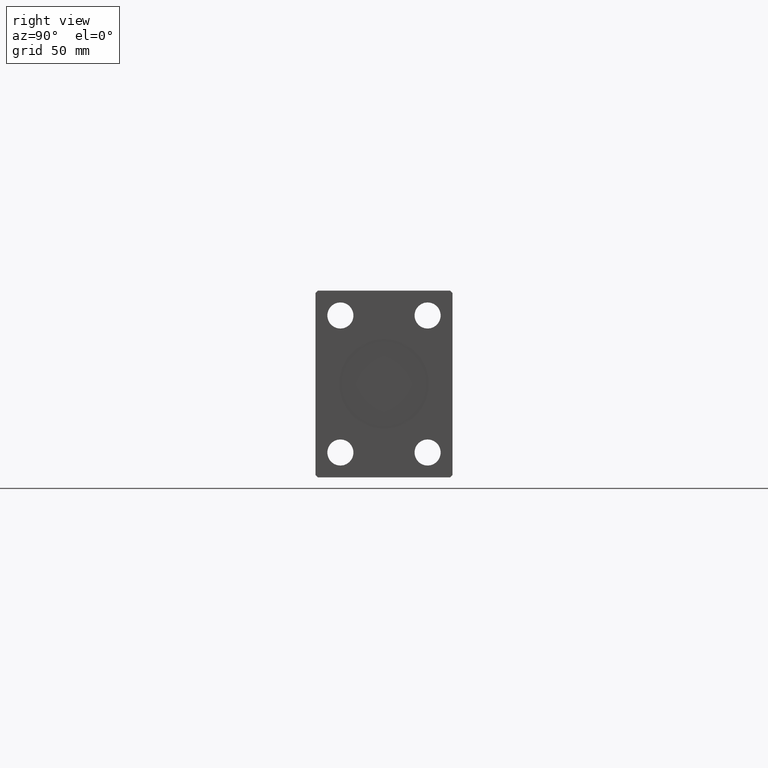
[diagram: clean part render]
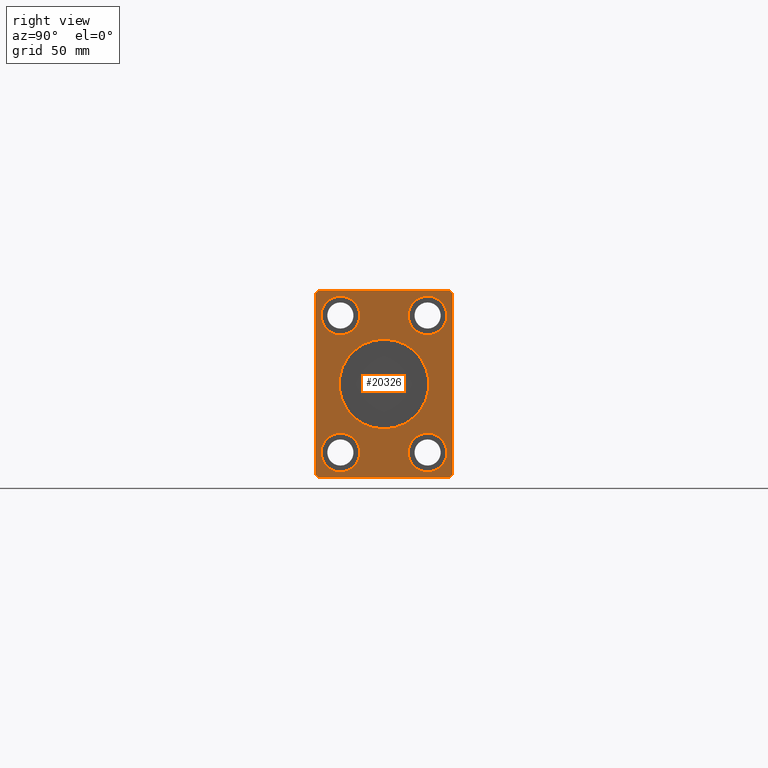
[diagram: same view with one face highlighted and labeled with its STEP entity id]
A machine part, right view. The second image highlights one B-rep face of the part: STEP entity #20326.
In plain terms, the highlighted planar face has unit normal (1, 0, 0).
Its self-contained STEP definition (entity closure, byte-faithful):
#592 = ORIENTED_EDGE ( 'NONE', *, *, #25924, .T. ) ;
#640 = FACE_BOUND ( 'NONE', #27757, .T. ) ;
#800 = VERTEX_POINT ( 'NONE', #42394 ) ;
#860 = FACE_OUTER_BOUND ( 'NONE', #3166, .T. ) ;
#1175 = DIRECTION ( 'NONE',  ( 0.000000000000000000, 0.000000000000000000, -1.000000000000000000 ) ) ;
#1200 = AXIS2_PLACEMENT_3D ( 'NONE', #37167, #6574, #3458 ) ;
#1367 = LINE ( 'NONE', #14974, #29896 ) ;
#1525 = DIRECTION ( 'NONE',  ( 1.000000000000000000, -0.000000000000000000, -0.000000000000000000 ) ) ;
#1619 = DIRECTION ( 'NONE',  ( 0.000000000000000000, 0.000000000000000000, -1.000000000000000000 ) ) ;
#1978 = DIRECTION ( 'NONE',  ( 0.000000000000000000, 0.000000000000000000, 1.000000000000000000 ) ) ;
#2007 = ORIENTED_EDGE ( 'NONE', *, *, #36453, .T. ) ;
#2431 = ORIENTED_EDGE ( 'NONE', *, *, #25258, .F. ) ;
#2437 = CARTESIAN_POINT ( 'NONE',  ( 265.0000000000000000, 27.50000000000000711, -36.49999999999999289 ) ) ;
#2486 = LINE ( 'NONE', #43546, #42595 ) ;
#2649 = CIRCLE ( 'NONE', #32602, 18.00000000000000000 ) ;
#2827 = EDGE_CURVE ( 'NONE', #32258, #18135, #26052, .T. ) ;
#3143 = VERTEX_POINT ( 'NONE', #18873 ) ;
#3166 = EDGE_LOOP ( 'NONE', ( #3241, #23382, #592, #19305, #11839, #15828, #2007, #16301 ) ) ;
#3241 = ORIENTED_EDGE ( 'NONE', *, *, #21726, .T. ) ;
#3426 = CARTESIAN_POINT ( 'NONE',  ( 265.0000000000000000, 26.50000000000000355, 37.50000000000000711 ) ) ;
#3458 = DIRECTION ( 'NONE',  ( 0.000000000000000000, 0.000000000000000000, 1.000000000000000000 ) ) ;
#3553 = VECTOR ( 'NONE', #14831, 1000.000000000000000 ) ;
#4074 = CARTESIAN_POINT ( 'NONE',  ( 265.0000000000000000, 17.50000000000000000, 19.74999999999999645 ) ) ;
#4819 = CARTESIAN_POINT ( 'NONE',  ( 265.0000000000000000, 27.50000000000000355, 36.50000000000000711 ) ) ;
#5244 = VECTOR ( 'NONE', #29415, 1000.000000000000114 ) ;
#5861 = DIRECTION ( 'NONE',  ( 0.000000000000000000, 0.000000000000000000, 1.000000000000000000 ) ) ;
#6115 = AXIS2_PLACEMENT_3D ( 'NONE', #36642, #33292, #36874 ) ;
#6532 = CIRCLE ( 'NONE', #40752, 7.750000000000003553 ) ;
#6574 = DIRECTION ( 'NONE',  ( -1.000000000000000000, -0.000000000000000000, -0.000000000000000000 ) ) ;
#6638 = DIRECTION ( 'NONE',  ( 0.000000000000000000, 0.000000000000000000, -1.000000000000000000 ) ) ;
#6781 = VERTEX_POINT ( 'NONE', #40216 ) ;
#7027 = ORIENTED_EDGE ( 'NONE', *, *, #18197, .T. ) ;
#7059 = ORIENTED_EDGE ( 'NONE', *, *, #20434, .F. ) ;
#7631 = CARTESIAN_POINT ( 'NONE',  ( 265.0000000000000000, -27.50000000000000711, 36.50000000000000711 ) ) ;
#7757 = CARTESIAN_POINT ( 'NONE',  ( 265.0000000000000000, 17.50000000000000000, -19.74999999999999645 ) ) ;
#7834 = VERTEX_POINT ( 'NONE', #43981 ) ;
#7857 = DIRECTION ( 'NONE',  ( 1.000000000000000000, 0.000000000000000000, 0.000000000000000000 ) ) ;
#7910 = CARTESIAN_POINT ( 'NONE',  ( 265.0000000000000000, 27.50000000000000711, -36.49999999999999289 ) ) ;
#7970 = DIRECTION ( 'NONE',  ( 1.000000000000000000, 0.000000000000000000, 0.000000000000000000 ) ) ;
#8220 = CARTESIAN_POINT ( 'NONE',  ( 265.0000000000000000, 17.50000000000000000, -27.50000000000000000 ) ) ;
#8470 = CIRCLE ( 'NONE', #40574, 7.750000000000003553 ) ;
#8599 = VERTEX_POINT ( 'NONE', #10334 ) ;
#8852 = EDGE_LOOP ( 'NONE', ( #15837, #23256 ) ) ;
#9410 = CIRCLE ( 'NONE', #13739, 7.750000000000003553 ) ;
#9540 = CIRCLE ( 'NONE', #26665, 18.00000000000000000 ) ;
#10148 = EDGE_CURVE ( 'NONE', #14929, #3143, #21159, .T. ) ;
#10160 = AXIS2_PLACEMENT_3D ( 'NONE', #40108, #27186, #6638 ) ;
#10334 = CARTESIAN_POINT ( 'NONE',  ( 265.0000000000000000, 0.000000000000000000, -18.00000000000000000 ) ) ;
#10349 = VERTEX_POINT ( 'NONE', #31629 ) ;
#10395 = CIRCLE ( 'NONE', #6115, 7.750000000000003553 ) ;
#10583 = VECTOR ( 'NONE', #29761, 1000.000000000000000 ) ;
#10665 = FACE_BOUND ( 'NONE', #36213, .T. ) ;
#10959 = ORIENTED_EDGE ( 'NONE', *, *, #39722, .F. ) ;
#11210 = VECTOR ( 'NONE', #35815, 1000.000000000000000 ) ;
#11764 = DIRECTION ( 'NONE',  ( 1.000000000000000000, 0.000000000000000000, 0.000000000000000000 ) ) ;
#11839 = ORIENTED_EDGE ( 'NONE', *, *, #2827, .T. ) ;
#12130 = DIRECTION ( 'NONE',  ( -1.000000000000000000, -0.000000000000000000, -0.000000000000000000 ) ) ;
#12425 = EDGE_LOOP ( 'NONE', ( #28157, #7059 ) ) ;
#13739 = AXIS2_PLACEMENT_3D ( 'NONE', #39114, #41794, #1619 ) ;
#14385 = CARTESIAN_POINT ( 'NONE',  ( 265.0000000000000000, 2.204364238465235428E-15, 18.00000000000000000 ) ) ;
#14560 = EDGE_LOOP ( 'NONE', ( #7027, #30420 ) ) ;
#14831 = DIRECTION ( 'NONE',  ( 0.000000000000000000, 1.000000000000000000, 0.000000000000000000 ) ) ;
#14929 = VERTEX_POINT ( 'NONE', #7757 ) ;
#14974 = CARTESIAN_POINT ( 'NONE',  ( 265.0000000000000000, -26.50000000000000711, 37.50000000000000711 ) ) ;
#15115 = CARTESIAN_POINT ( 'NONE',  ( 265.0000000000000000, 0.000000000000000000, 0.000000000000000000 ) ) ;
#15140 = CARTESIAN_POINT ( 'NONE',  ( 265.0000000000000000, -27.50000000000000355, -36.49999999999998579 ) ) ;
#15217 = CARTESIAN_POINT ( 'NONE',  ( 265.0000000000000000, 0.000000000000000000, 0.000000000000000000 ) ) ;
#15368 = CARTESIAN_POINT ( 'NONE',  ( 265.0000000000000000, 17.50000000000000000, 35.25000000000000000 ) ) ;
#15436 = CARTESIAN_POINT ( 'NONE',  ( 265.0000000000000000, 26.50000000000000711, -37.49999999999999289 ) ) ;
#15491 = AXIS2_PLACEMENT_3D ( 'NONE', #34341, #7970, #20940 ) ;
#15797 = VECTOR ( 'NONE', #15852, 1000.000000000000114 ) ;
#15828 = ORIENTED_EDGE ( 'NONE', *, *, #31042, .T. ) ;
#15837 = ORIENTED_EDGE ( 'NONE', *, *, #38614, .F. ) ;
#15852 = DIRECTION ( 'NONE',  ( 0.000000000000000000, 0.7071067811865474617, 0.7071067811865474617 ) ) ;
#16044 = DIRECTION ( 'NONE',  ( 0.000000000000000000, -4.752667057470704875E-17, 1.000000000000000000 ) ) ;
#16128 = AXIS2_PLACEMENT_3D ( 'NONE', #8220, #35469, #1978 ) ;
#16301 = ORIENTED_EDGE ( 'NONE', *, *, #21923, .T. ) ;
#16531 = EDGE_CURVE ( 'NONE', #6781, #7834, #10395, .T. ) ;
#16731 = LINE ( 'NONE', #2437, #38384 ) ;
#18135 = VERTEX_POINT ( 'NONE', #36486 ) ;
#18197 = EDGE_CURVE ( 'NONE', #7834, #6781, #36846, .T. ) ;
#18300 = ORIENTED_EDGE ( 'NONE', *, *, #36137, .T. ) ;
#18408 = CARTESIAN_POINT ( 'NONE',  ( 265.0000000000000000, -27.50000000000000711, 36.50000000000000711 ) ) ;
#18873 = CARTESIAN_POINT ( 'NONE',  ( 265.0000000000000000, 17.50000000000000000, -35.25000000000000000 ) ) ;
#19194 = VERTEX_POINT ( 'NONE', #7631 ) ;
#19305 = ORIENTED_EDGE ( 'NONE', *, *, #20733, .T. ) ;
#19672 = DIRECTION ( 'NONE',  ( 0.000000000000000000, -0.7071067811865474617, 0.7071067811865474617 ) ) ;
#20326 = ADVANCED_FACE ( 'NONE', ( #27862, #24078, #10665, #860, #38562, #640 ), #35212, .T. ) ;
#20434 = EDGE_CURVE ( 'NONE', #35554, #8599, #2649, .T. ) ;
#20733 = EDGE_CURVE ( 'NONE', #19194, #32258, #21760, .T. ) ;
#20940 = DIRECTION ( 'NONE',  ( 0.000000000000000000, 0.000000000000000000, -1.000000000000000000 ) ) ;
#21159 = CIRCLE ( 'NONE', #16128, 7.750000000000003553 ) ;
#21322 = AXIS2_PLACEMENT_3D ( 'NONE', #32098, #1525, #31882 ) ;
#21525 = LINE ( 'NONE', #35581, #3553 ) ;
#21726 = EDGE_CURVE ( 'NONE', #26536, #42080, #2486, .T. ) ;
#21760 = LINE ( 'NONE', #18408, #11210 ) ;
#21923 = EDGE_CURVE ( 'NONE', #31679, #26536, #16731, .T. ) ;
#22946 = DIRECTION ( 'NONE',  ( 1.000000000000000000, -0.000000000000000000, -0.000000000000000000 ) ) ;
#23256 = ORIENTED_EDGE ( 'NONE', *, *, #24405, .F. ) ;
#23382 = ORIENTED_EDGE ( 'NONE', *, *, #23755, .T. ) ;
#23755 = EDGE_CURVE ( 'NONE', #42080, #41195, #33777, .T. ) ;
#24078 = FACE_BOUND ( 'NONE', #14560, .T. ) ;
#24405 = EDGE_CURVE ( 'NONE', #10349, #38195, #8470, .T. ) ;
#25258 = EDGE_CURVE ( 'NONE', #27023, #36331, #34870, .T. ) ;
#25381 = DIRECTION ( 'NONE',  ( 0.000000000000000000, 0.000000000000000000, -1.000000000000000000 ) ) ;
#25527 = CARTESIAN_POINT ( 'NONE',  ( 265.0000000000000000, -26.50000000000000711, 37.50000000000000711 ) ) ;
#25639 = CARTESIAN_POINT ( 'NONE',  ( 265.0000000000000000, 26.50000000000000355, 37.50000000000000711 ) ) ;
#25651 = CARTESIAN_POINT ( 'NONE',  ( 265.0000000000000000, -27.50000000000000355, -36.49999999999998579 ) ) ;
#25924 = EDGE_CURVE ( 'NONE', #41195, #19194, #1367, .T. ) ;
#26052 = LINE ( 'NONE', #15140, #5244 ) ;
#26536 = VERTEX_POINT ( 'NONE', #4819 ) ;
#26665 = AXIS2_PLACEMENT_3D ( 'NONE', #15217, #7857, #1175 ) ;
#27023 = VERTEX_POINT ( 'NONE', #15368 ) ;
#27186 = DIRECTION ( 'NONE',  ( 1.000000000000000000, -0.000000000000000000, -0.000000000000000000 ) ) ;
#27757 = EDGE_LOOP ( 'NONE', ( #10959, #2431 ) ) ;
#27862 = FACE_BOUND ( 'NONE', #12425, .T. ) ;
#28157 = ORIENTED_EDGE ( 'NONE', *, *, #43743, .F. ) ;
#28595 = DIRECTION ( 'NONE',  ( 0.000000000000000000, -0.7071067811865474617, -0.7071067811865474617 ) ) ;
#29410 = CIRCLE ( 'NONE', #10160, 7.750000000000003553 ) ;
#29415 = DIRECTION ( 'NONE',  ( 0.000000000000000000, 0.7071067811865451302, -0.7071067811865500152 ) ) ;
#29725 = ORIENTED_EDGE ( 'NONE', *, *, #10148, .T. ) ;
#29761 = DIRECTION ( 'NONE',  ( 0.000000000000000000, -1.000000000000000000, 0.000000000000000000 ) ) ;
#29762 = CARTESIAN_POINT ( 'NONE',  ( 265.0000000000000000, 17.50000000000000000, -27.50000000000000000 ) ) ;
#29896 = VECTOR ( 'NONE', #28595, 1000.000000000000114 ) ;
#30420 = ORIENTED_EDGE ( 'NONE', *, *, #16531, .T. ) ;
#31042 = EDGE_CURVE ( 'NONE', #18135, #800, #21525, .T. ) ;
#31629 = CARTESIAN_POINT ( 'NONE',  ( 265.0000000000000000, -17.50000000000000000, -19.74999999999999645 ) ) ;
#31679 = VERTEX_POINT ( 'NONE', #7910 ) ;
#31882 = DIRECTION ( 'NONE',  ( 0.000000000000000000, 0.000000000000000000, -1.000000000000000000 ) ) ;
#32098 = CARTESIAN_POINT ( 'NONE',  ( 265.0000000000000000, 17.50000000000000000, 27.50000000000000000 ) ) ;
#32258 = VERTEX_POINT ( 'NONE', #25651 ) ;
#32471 = CARTESIAN_POINT ( 'NONE',  ( 265.0000000000000000, -17.50000000000000000, -35.25000000000000000 ) ) ;
#32602 = AXIS2_PLACEMENT_3D ( 'NONE', #15115, #11764, #25381 ) ;
#33292 = DIRECTION ( 'NONE',  ( -1.000000000000000000, -0.000000000000000000, -0.000000000000000000 ) ) ;
#33441 = CARTESIAN_POINT ( 'NONE',  ( 265.0000000000000000, -17.50000000000000000, -27.50000000000000000 ) ) ;
#33777 = LINE ( 'NONE', #3426, #10583 ) ;
#34341 = CARTESIAN_POINT ( 'NONE',  ( 265.0000000000000000, 0.000000000000000000, 0.000000000000000000 ) ) ;
#34870 = CIRCLE ( 'NONE', #21322, 7.750000000000003553 ) ;
#35212 = PLANE ( 'NONE',  #15491 ) ;
#35469 = DIRECTION ( 'NONE',  ( -1.000000000000000000, -0.000000000000000000, -0.000000000000000000 ) ) ;
#35554 = VERTEX_POINT ( 'NONE', #14385 ) ;
#35581 = CARTESIAN_POINT ( 'NONE',  ( 265.0000000000000000, -26.50000000000000355, -37.49999999999999289 ) ) ;
#35815 = DIRECTION ( 'NONE',  ( 0.000000000000000000, 4.752667057470705491E-17, -1.000000000000000000 ) ) ;
#36137 = EDGE_CURVE ( 'NONE', #3143, #14929, #6532, .T. ) ;
#36213 = EDGE_LOOP ( 'NONE', ( #18300, #29725 ) ) ;
#36331 = VERTEX_POINT ( 'NONE', #4074 ) ;
#36453 = EDGE_CURVE ( 'NONE', #800, #31679, #42856, .T. ) ;
#36486 = CARTESIAN_POINT ( 'NONE',  ( 265.0000000000000000, -26.50000000000000355, -37.49999999999999289 ) ) ;
#36569 = DIRECTION ( 'NONE',  ( 0.000000000000000000, 0.000000000000000000, -1.000000000000000000 ) ) ;
#36642 = CARTESIAN_POINT ( 'NONE',  ( 265.0000000000000000, -17.50000000000000000, 27.50000000000000000 ) ) ;
#36846 = CIRCLE ( 'NONE', #1200, 7.750000000000003553 ) ;
#36874 = DIRECTION ( 'NONE',  ( 0.000000000000000000, 0.000000000000000000, 1.000000000000000000 ) ) ;
#37167 = CARTESIAN_POINT ( 'NONE',  ( 265.0000000000000000, -17.50000000000000000, 27.50000000000000000 ) ) ;
#38195 = VERTEX_POINT ( 'NONE', #32471 ) ;
#38384 = VECTOR ( 'NONE', #16044, 1000.000000000000000 ) ;
#38562 = FACE_BOUND ( 'NONE', #8852, .T. ) ;
#38614 = EDGE_CURVE ( 'NONE', #38195, #10349, #9410, .T. ) ;
#39114 = CARTESIAN_POINT ( 'NONE',  ( 265.0000000000000000, -17.50000000000000000, -27.50000000000000000 ) ) ;
#39722 = EDGE_CURVE ( 'NONE', #36331, #27023, #29410, .T. ) ;
#40108 = CARTESIAN_POINT ( 'NONE',  ( 265.0000000000000000, 17.50000000000000000, 27.50000000000000000 ) ) ;
#40216 = CARTESIAN_POINT ( 'NONE',  ( 265.0000000000000000, -17.50000000000000000, 35.25000000000000000 ) ) ;
#40574 = AXIS2_PLACEMENT_3D ( 'NONE', #33441, #22946, #36569 ) ;
#40752 = AXIS2_PLACEMENT_3D ( 'NONE', #29762, #12130, #5861 ) ;
#41195 = VERTEX_POINT ( 'NONE', #25527 ) ;
#41794 = DIRECTION ( 'NONE',  ( 1.000000000000000000, -0.000000000000000000, -0.000000000000000000 ) ) ;
#42080 = VERTEX_POINT ( 'NONE', #25639 ) ;
#42394 = CARTESIAN_POINT ( 'NONE',  ( 265.0000000000000000, 26.50000000000000711, -37.49999999999999289 ) ) ;
#42595 = VECTOR ( 'NONE', #19672, 1000.000000000000114 ) ;
#42856 = LINE ( 'NONE', #15436, #15797 ) ;
#43546 = CARTESIAN_POINT ( 'NONE',  ( 265.0000000000000000, 27.50000000000000355, 36.50000000000000711 ) ) ;
#43743 = EDGE_CURVE ( 'NONE', #8599, #35554, #9540, .T. ) ;
#43981 = CARTESIAN_POINT ( 'NONE',  ( 265.0000000000000000, -17.50000000000000000, 19.74999999999999645 ) ) ;